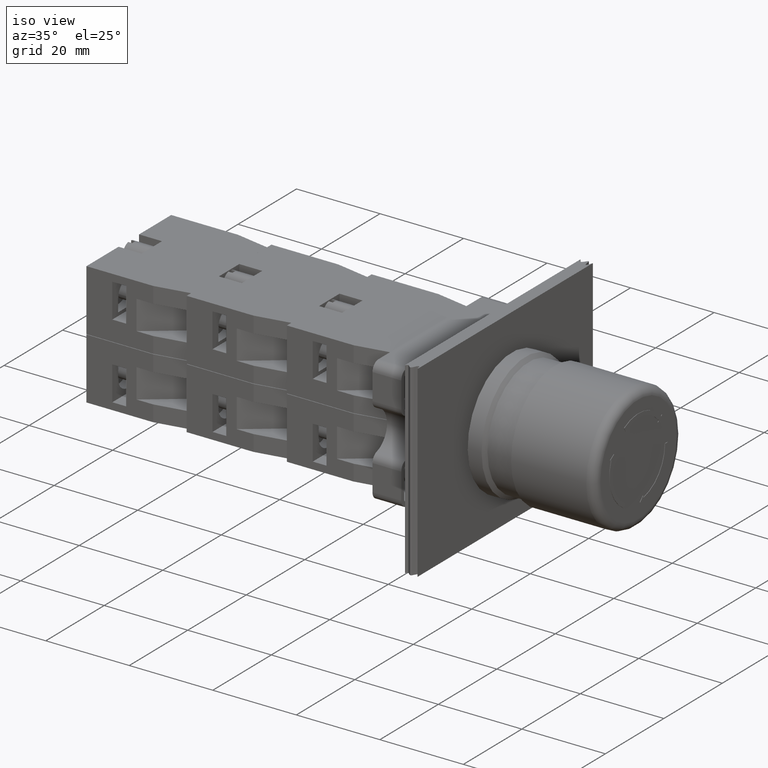
[diagram: clean part render]
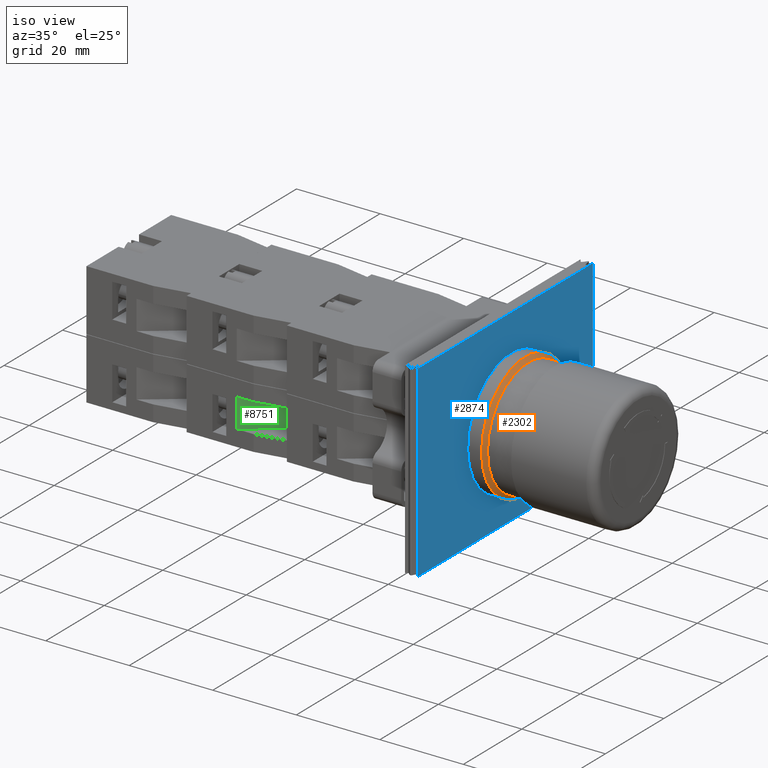
[diagram: same view with three faces highlighted in distinct colors, each labeled with its STEP entity id]
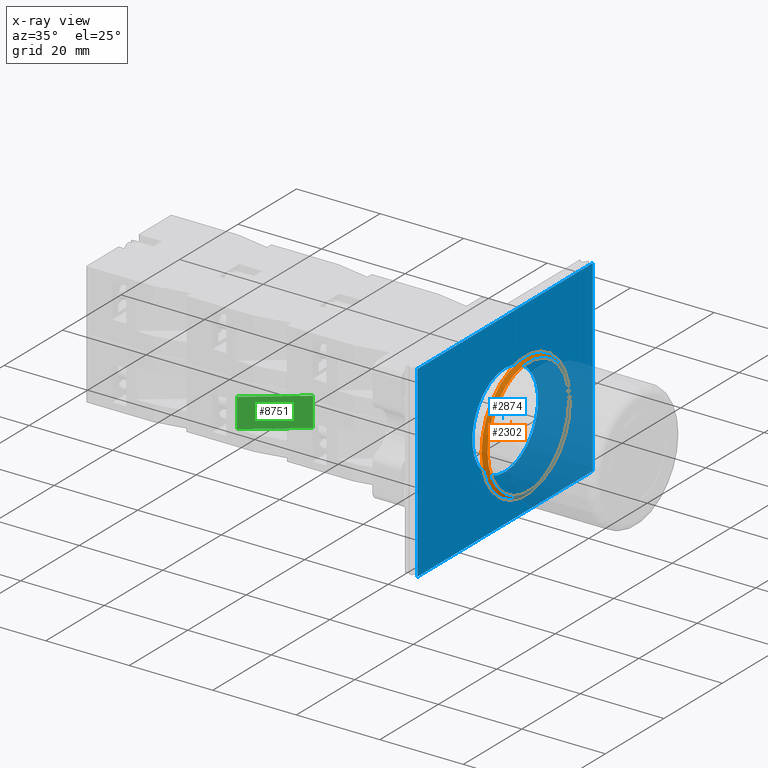
[diagram: x-ray of the same camera — body ghosted, the three highlighted faces saturated]
A machine part, iso view with three faces highlighted in distinct colors.
The next image is the same camera in x-ray (body ghosted, the three faces saturated) — at least one of them is partly hidden behind the body in this view.
Their STEP definitions:

[orange] entity #2302 — the highlighted conical surface has half-angle 51.633 deg.
#2268=CARTESIAN_POINT('',(-5.972349527873301,16.129839215727504,0.0));
#2269=VERTEX_POINT('',#2268);
#2270=CARTESIAN_POINT('',(-5.972349527873302,1.129839215727505,0.0));
#2271=DIRECTION('',(1.0,0.0,0.0));
#2272=DIRECTION('',(0.0,1.0,0.0));
#2273=AXIS2_PLACEMENT_3D('',#2270,#2271,#2272);
#2274=CIRCLE('',#2273,15.0);
#2275=EDGE_CURVE('',#2269,#2269,#2274,.T.);
#2283=CARTESIAN_POINT('',(-5.596308843709270,1.129839215727505,0.0));
#2284=DIRECTION('',(-1.0,0.0,0.0));
#2285=DIRECTION('',(0.0,1.0,0.0));
#2286=AXIS2_PLACEMENT_3D('',#2283,#2284,#2285);
#2287=CONICAL_SURFACE('',#2286,14.525000000000045,51.632587467907030);
#2288=CARTESIAN_POINT('',(-5.220268159545238,15.179839215727595,0.0));
#2289=VERTEX_POINT('',#2288);
#2290=CARTESIAN_POINT('',(-5.220268159545238,1.129839215727505,0.0));
#2291=DIRECTION('',(1.0,0.0,0.0));
#2292=DIRECTION('',(0.0,1.0,0.0));
#2293=AXIS2_PLACEMENT_3D('',#2290,#2291,#2292);
#2294=CIRCLE('',#2293,14.050000000000091);
#2295=EDGE_CURVE('',#2289,#2289,#2294,.T.);
#2296=ORIENTED_EDGE('',*,*,#2295,.F.);
#2297=EDGE_LOOP('',(#2296));
#2298=FACE_OUTER_BOUND('',#2297,.T.);
#2299=ORIENTED_EDGE('',*,*,#2275,.T.);
#2300=EDGE_LOOP('',(#2299));
#2301=FACE_BOUND('',#2300,.T.);
#2302=ADVANCED_FACE('',(#2298,#2301),#2287,.T.);

[blue] entity #2874 — the highlighted planar face has unit normal (1, -0, 0).
#2779=CARTESIAN_POINT('',(-12.704183619849175,-32.725398273954283,11.250000000000000));
#2780=VERTEX_POINT('',#2779);
#2781=CARTESIAN_POINT('',(-12.704183619849179,-32.725398273954283,22.500000000000000));
#2782=DIRECTION('',(-1.0,0.0,0.0));
#2783=DIRECTION('',(0.0,0.0,1.0));
#2784=AXIS2_PLACEMENT_3D('',#2781,#2782,#2783);
#2785=CIRCLE('',#2784,11.250000000000000);
#2786=EDGE_CURVE('',#2780,#2780,#2785,.T.);
#2804=CARTESIAN_POINT('',(-12.704183619849179,-2.725398273954287,45.0));
#2805=VERTEX_POINT('',#2804);
#2814=CARTESIAN_POINT('',(-12.704183619849179,-2.725398273954287,0.0));
#2815=VERTEX_POINT('',#2814);
#2816=CARTESIAN_POINT('',(-12.704183619849179,-2.725398273954287,0.0));
#2817=DIRECTION('',(0.0,0.0,1.0));
#2818=VECTOR('',#2817,45.0);
#2819=LINE('',#2816,#2818);
#2820=EDGE_CURVE('',#2815,#2805,#2819,.T.);
#2841=CARTESIAN_POINT('',(-12.704183619849179,-2.725398273954287,0.0));
#2842=DIRECTION('',(1.0,0.0,0.0));
#2843=DIRECTION('',(0.0,0.0,-1.0));
#2844=AXIS2_PLACEMENT_3D('',#2841,#2842,#2843);
#2845=PLANE('',#2844);
#2846=CARTESIAN_POINT('',(-12.704183619849172,-62.725398273954283,45.0));
#2847=VERTEX_POINT('',#2846);
#2848=CARTESIAN_POINT('',(-12.704183619849179,-2.725398273954287,45.0));
#2849=DIRECTION('',(0.0,-1.0,0.0));
#2850=VECTOR('',#2849,60.0);
#2851=LINE('',#2848,#2850);
#2852=EDGE_CURVE('',#2805,#2847,#2851,.T.);
#2853=ORIENTED_EDGE('',*,*,#2852,.T.);
#2854=CARTESIAN_POINT('',(-12.704183619849172,-62.725398273954283,0.0));
#2855=VERTEX_POINT('',#2854);
#2856=CARTESIAN_POINT('',(-12.704183619849172,-62.725398273954283,0.0));
#2857=DIRECTION('',(0.0,0.0,1.0));
#2858=VECTOR('',#2857,45.0);
#2859=LINE('',#2856,#2858);
#2860=EDGE_CURVE('',#2855,#2847,#2859,.T.);
#2861=ORIENTED_EDGE('',*,*,#2860,.F.);
#2862=CARTESIAN_POINT('',(-12.704183619849172,-62.725398273954283,0.0));
#2863=DIRECTION('',(0.0,1.0,0.0));
#2864=VECTOR('',#2863,60.0);
#2865=LINE('',#2862,#2864);
#2866=EDGE_CURVE('',#2855,#2815,#2865,.T.);
#2867=ORIENTED_EDGE('',*,*,#2866,.T.);
#2868=ORIENTED_EDGE('',*,*,#2820,.T.);
#2869=EDGE_LOOP('',(#2853,#2861,#2867,#2868));
#2870=FACE_OUTER_BOUND('',#2869,.T.);
#2871=ORIENTED_EDGE('',*,*,#2786,.T.);
#2872=EDGE_LOOP('',(#2871));
#2873=FACE_BOUND('',#2872,.T.);
#2874=ADVANCED_FACE('',(#2870,#2873),#2845,.T.);

[green] entity #8751 — the highlighted planar face has unit normal (-0.6, 0.8, 0).
#8696=CARTESIAN_POINT('',(-24.936741828918464,-0.202926676720378,10.850000000000000));
#8697=VERTEX_POINT('',#8696);
#8704=CARTESIAN_POINT('',(-15.936741828918466,11.797073323279626,10.850000000000000));
#8705=VERTEX_POINT('',#8704);
#8706=CARTESIAN_POINT('',(-24.936741828918464,-0.202926676720378,10.850000000000000));
#8707=DIRECTION('',(0.600000000000000,0.800000000000000,0.0));
#8708=VECTOR('',#8707,15.000000000000002);
#8709=LINE('',#8706,#8708);
#8710=EDGE_CURVE('',#8697,#8705,#8709,.T.);
#8721=CARTESIAN_POINT('',(-15.936741828918466,11.797073323279626,7.350000000000000));
#8722=DIRECTION('',(-0.800000000000000,0.600000000000000,0.0));
#8723=DIRECTION('',(0.0,0.0,1.0));
#8724=AXIS2_PLACEMENT_3D('',#8721,#8722,#8723);
#8725=PLANE('',#8724);
#8726=CARTESIAN_POINT('',(-15.936741828918466,11.797073323279626,3.850000000000001));
#8727=VERTEX_POINT('',#8726);
#8728=CARTESIAN_POINT('',(-24.936741828918464,-0.202926676720378,3.850000000000001));
#8729=VERTEX_POINT('',#8728);
#8730=CARTESIAN_POINT('',(-15.936741828918466,11.797073323279626,3.850000000000001));
#8731=DIRECTION('',(-0.600000000000000,-0.800000000000000,0.0));
#8732=VECTOR('',#8731,15.000000000000002);
#8733=LINE('',#8730,#8732);
#8734=EDGE_CURVE('',#8727,#8729,#8733,.T.);
#8735=ORIENTED_EDGE('',*,*,#8734,.F.);
#8736=CARTESIAN_POINT('',(-15.936741828918466,11.797073323279626,10.850000000000000));
#8737=DIRECTION('',(0.0,0.0,-1.0));
#8738=VECTOR('',#8737,6.999999999999999);
#8739=LINE('',#8736,#8738);
#8740=EDGE_CURVE('',#8705,#8727,#8739,.T.);
#8741=ORIENTED_EDGE('',*,*,#8740,.F.);
#8742=ORIENTED_EDGE('',*,*,#8710,.F.);
#8743=CARTESIAN_POINT('',(-24.936741828918464,-0.202926676720378,3.850000000000001));
#8744=DIRECTION('',(0.0,0.0,1.0));
#8745=VECTOR('',#8744,6.999999999999999);
#8746=LINE('',#8743,#8745);
#8747=EDGE_CURVE('',#8729,#8697,#8746,.T.);
#8748=ORIENTED_EDGE('',*,*,#8747,.F.);
#8749=EDGE_LOOP('',(#8735,#8741,#8742,#8748));
#8750=FACE_OUTER_BOUND('',#8749,.T.);
#8751=ADVANCED_FACE('',(#8750),#8725,.F.);